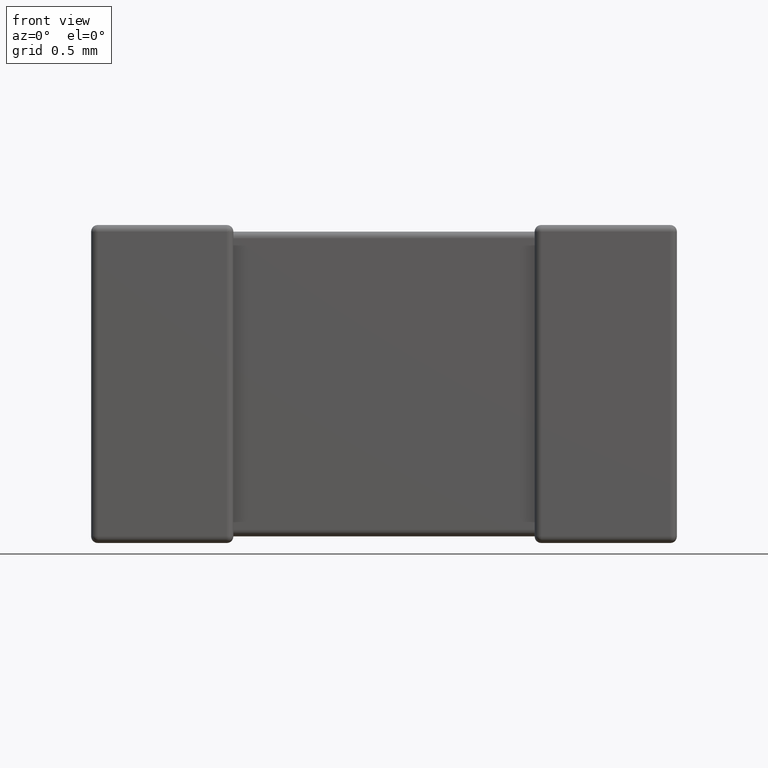
[diagram: clean part render]
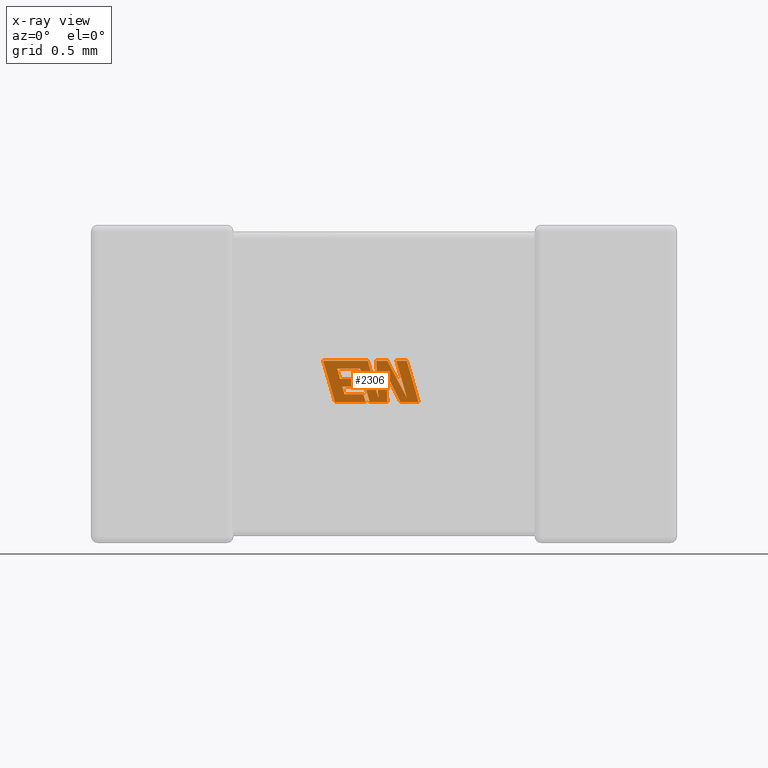
[diagram: x-ray — body ghosted, one internal face saturated and labeled with its STEP entity id]
A machine part, front view, then the same camera in x-ray: the body is ghosted and one INTERNAL B-rep face — a face not visible from any outside direction — is saturated and labeled: STEP entity #2306.
In plain terms, the highlighted planar face has unit normal (0, -1, 0).
Its self-contained STEP definition (entity closure, byte-faithful):
#46 = DIRECTION ( 'NONE',  ( -0.05596501978068185700, 0.0000000000000000000, 0.9984327301130245800 ) ) ;
#98 = ORIENTED_EDGE ( 'NONE', *, *, #2033, .F. ) ;
#115 = CARTESIAN_POINT ( 'NONE',  ( 1.606874418269159700, 1.760480000000000000, -0.9659595479684123200 ) ) ;
#161 = CARTESIAN_POINT ( 'NONE',  ( 1.886737460260521800, 1.760480000000000000, -1.033058596989660600 ) ) ;
#168 = ORIENTED_EDGE ( 'NONE', *, *, #1984, .F. ) ;
#232 = DIRECTION ( 'NONE',  ( 1.000000000000000000, 0.0000000000000000000, 0.0000000000000000000 ) ) ;
#239 = CARTESIAN_POINT ( 'NONE',  ( 1.703740122302430400, 1.760480000000000000, -0.8114900000000000400 ) ) ;
#246 = EDGE_CURVE ( 'NONE', #3260, #2113, #2145, .T. ) ;
#255 = CARTESIAN_POINT ( 'NONE',  ( 1.640208553447519700, 1.760480000000000000, -1.059174177071127200 ) ) ;
#260 = LINE ( 'NONE', #930, #650 ) ;
#269 = LINE ( 'NONE', #2570, #1490 ) ;
#276 = VERTEX_POINT ( 'NONE', #1531 ) ;
#288 = VECTOR ( 'NONE', #1039, 1000.000000000000000 ) ;
#311 = DIRECTION ( 'NONE',  ( 0.4668459304955247000, 0.0000000000000000000, -0.8843386665637592600 ) ) ;
#456 = CARTESIAN_POINT ( 'NONE',  ( 1.500565473312127000, 1.760480000000000000, -0.9659595479684123200 ) ) ;
#467 = EDGE_CURVE ( 'NONE', #4515, #1075, #2722, .T. ) ;
#481 = CARTESIAN_POINT ( 'NONE',  ( 1.513970823413273600, 1.760480000000000000, -1.012028765741800100 ) ) ;
#490 = LINE ( 'NONE', #1594, #3120 ) ;
#502 = CARTESIAN_POINT ( 'NONE',  ( 1.957261651543848800, 1.760480000000000000, -1.059174177071127200 ) ) ;
#505 = LINE ( 'NONE', #2407, #4109 ) ;
#524 = VERTEX_POINT ( 'NONE', #2083 ) ;
#530 = ORIENTED_EDGE ( 'NONE', *, *, #467, .F. ) ;
#558 = ORIENTED_EDGE ( 'NONE', *, *, #3923, .F. ) ;
#590 = LINE ( 'NONE', #3276, #2371 ) ;
#603 = VERTEX_POINT ( 'NONE', #3191 ) ;
#621 = LINE ( 'NONE', #4359, #3598 ) ;
#640 = EDGE_CURVE ( 'NONE', #1489, #3884, #621, .T. ) ;
#650 = VECTOR ( 'NONE', #872, 1000.000000000000000 ) ;
#655 = CARTESIAN_POINT ( 'NONE',  ( 1.469962113384544000, 1.760480000000000000, -0.8586120649335425800 ) ) ;
#672 = CARTESIAN_POINT ( 'NONE',  ( 1.716100156339302600, 1.760480000000000000, -1.031996712515880900 ) ) ;
#680 = VERTEX_POINT ( 'NONE', #751 ) ;
#685 = CARTESIAN_POINT ( 'NONE',  ( 1.823110246293129700, 1.760480000000000000, -0.8114900000000000400 ) ) ;
#709 = CARTESIAN_POINT ( 'NONE',  ( 1.500565473312127000, 1.760480000000000000, -0.9659595479684123200 ) ) ;
#716 = CARTESIAN_POINT ( 'NONE',  ( 1.664913559329999100, 1.760480000000000000, -1.059174177071127200 ) ) ;
#751 = CARTESIAN_POINT ( 'NONE',  ( 1.957261651543848800, 1.760480000000000000, -1.059174177071127200 ) ) ;
#784 = VERTEX_POINT ( 'NONE', #1592 ) ;
#870 = EDGE_CURVE ( 'NONE', #965, #4515, #2273, .T. ) ;
#872 = DIRECTION ( 'NONE',  ( 0.2746459304917039400, 0.0000000000000000000, -0.9615454294334439000 ) ) ;
#906 = EDGE_CURVE ( 'NONE', #3486, #524, #3636, .T. ) ;
#916 = EDGE_CURVE ( 'NONE', #276, #680, #4557, .T. ) ;
#930 = CARTESIAN_POINT ( 'NONE',  ( 1.593795917715412200, 1.760480000000000000, -0.9201712400594462800 ) ) ;
#942 = VECTOR ( 'NONE', #4295, 1000.000000000000100 ) ;
#951 = DIRECTION ( 'NONE',  ( -0.2765379750249969400, 0.0000000000000000000, 0.9610029908221275900 ) ) ;
#965 = VERTEX_POINT ( 'NONE', #3057 ) ;
#1012 = AXIS2_PLACEMENT_3D ( 'NONE', #1268, #3434, #3414 ) ;
#1035 = VECTOR ( 'NONE', #3448, 999.9999999999998900 ) ;
#1039 = DIRECTION ( 'NONE',  ( -0.2760118818968593200, 0.0000000000000000000, 0.9611542233438680200 ) ) ;
#1075 = VERTEX_POINT ( 'NONE', #716 ) ;
#1089 = LINE ( 'NONE', #655, #942 ) ;
#1249 = LINE ( 'NONE', #2821, #4301 ) ;
#1257 = CARTESIAN_POINT ( 'NONE',  ( 1.606874418269159700, 1.760480000000000000, -0.9659595479684123200 ) ) ;
#1268 = CARTESIAN_POINT ( 'NONE',  ( -0.0002322642521030218700, 1.760479999999999600, 0.02144485441983351400 ) ) ;
#1277 = ORIENTED_EDGE ( 'NONE', *, *, #2466, .F. ) ;
#1283 = VECTOR ( 'NONE', #3070, 1000.000000000000000 ) ;
#1290 = CARTESIAN_POINT ( 'NONE',  ( 1.703740122302430400, 1.760480000000000000, -0.8114900000000000400 ) ) ;
#1308 = LINE ( 'NONE', #2301, #4087 ) ;
#1321 = VECTOR ( 'NONE', #1329, 1000.000000000000000 ) ;
#1329 = DIRECTION ( 'NONE',  ( 1.000000000000000000, 0.0000000000000000000, -2.459231407381525800E-015 ) ) ;
#1355 = CARTESIAN_POINT ( 'NONE',  ( 1.652786235947213900, 1.760480000000000000, -0.8114900000000000400 ) ) ;
#1360 = CARTESIAN_POINT ( 'NONE',  ( 1.769770508863776100, 1.760480000000000000, -0.8114900000000000400 ) ) ;
#1365 = VECTOR ( 'NONE', #1583, 1000.000000000000000 ) ;
#1368 = EDGE_CURVE ( 'NONE', #2826, #3260, #260, .T. ) ;
#1446 = ORIENTED_EDGE ( 'NONE', *, *, #246, .F. ) ;
#1489 = VERTEX_POINT ( 'NONE', #672 ) ;
#1490 = VECTOR ( 'NONE', #4336, 1000.000000000000000 ) ;
#1506 = VECTOR ( 'NONE', #311, 1000.000000000000100 ) ;
#1508 = VERTEX_POINT ( 'NONE', #685 ) ;
#1524 = EDGE_CURVE ( 'NONE', #784, #2400, #1089, .T. ) ;
#1531 = CARTESIAN_POINT ( 'NONE',  ( 1.886050624345266600, 1.760480000000000000, -0.8114900000000000400 ) ) ;
#1557 = LINE ( 'NONE', #3270, #2686 ) ;
#1579 = ORIENTED_EDGE ( 'NONE', *, *, #3097, .F. ) ;
#1583 = DIRECTION ( 'NONE',  ( -1.000000000000000000, 0.0000000000000000000, 0.0000000000000000000 ) ) ;
#1592 = CARTESIAN_POINT ( 'NONE',  ( 1.469962113384544000, 1.760480000000000000, -0.8586120649335425800 ) ) ;
#1594 = CARTESIAN_POINT ( 'NONE',  ( 1.487502034949494500, 1.760480000000000000, -0.9201712400594462800 ) ) ;
#1598 = LINE ( 'NONE', #502, #2495 ) ;
#1614 = PLANE ( 'NONE',  #1012 ) ;
#1623 = EDGE_CURVE ( 'NONE', #3699, #965, #1987, .T. ) ;
#1735 = ORIENTED_EDGE ( 'NONE', *, *, #2668, .F. ) ;
#1827 = ORIENTED_EDGE ( 'NONE', *, *, #1524, .F. ) ;
#1868 = EDGE_CURVE ( 'NONE', #3884, #3785, #3430, .T. ) ;
#1906 = VECTOR ( 'NONE', #2115, 1000.000000000000000 ) ;
#1961 = ORIENTED_EDGE ( 'NONE', *, *, #4437, .F. ) ;
#1984 = EDGE_CURVE ( 'NONE', #3633, #4619, #2231, .T. ) ;
#1985 = CARTESIAN_POINT ( 'NONE',  ( 1.848629056049057500, 1.760480000000000000, -1.059174177071127200 ) ) ;
#1987 = LINE ( 'NONE', #1985, #1035 ) ;
#1994 = CARTESIAN_POINT ( 'NONE',  ( 1.760868262395991300, 1.760480000000000000, -0.8822254186202872500 ) ) ;
#2015 = CARTESIAN_POINT ( 'NONE',  ( 1.770393487593018700, 1.760480000000000000, -1.059174177071127200 ) ) ;
#2023 = ORIENTED_EDGE ( 'NONE', *, *, #2522, .F. ) ;
#2033 = EDGE_CURVE ( 'NONE', #4330, #1508, #3892, .T. ) ;
#2076 = ORIENTED_EDGE ( 'NONE', *, *, #1368, .F. ) ;
#2083 = CARTESIAN_POINT ( 'NONE',  ( 1.457227783899648100, 1.760480000000000000, -1.059174177071127200 ) ) ;
#2113 = VERTEX_POINT ( 'NONE', #709 ) ;
#2115 = DIRECTION ( 'NONE',  ( 1.000000000000000000, 0.0000000000000000000, 0.0000000000000000000 ) ) ;
#2145 = LINE ( 'NONE', #115, #1365 ) ;
#2149 = EDGE_CURVE ( 'NONE', #2113, #3633, #4560, .T. ) ;
#2166 = CARTESIAN_POINT ( 'NONE',  ( 1.640208553447519700, 1.760480000000000000, -1.059174177071127200 ) ) ;
#2225 = DIRECTION ( 'NONE',  ( 0.2759782365590801000, 0.0000000000000000000, -0.9611638845408936300 ) ) ;
#2231 = LINE ( 'NONE', #3196, #1906 ) ;
#2273 = LINE ( 'NONE', #1994, #4501 ) ;
#2286 = LINE ( 'NONE', #1360, #1506 ) ;
#2301 = CARTESIAN_POINT ( 'NONE',  ( 1.664913559329999100, 1.760480000000000000, -1.059174177071127200 ) ) ;
#2306 = ADVANCED_FACE ( 'NONE', ( #3075 ), #1614, .T. ) ;
#2342 = DIRECTION ( 'NONE',  ( -1.000000000000000000, 0.0000000000000000000, 0.0000000000000000000 ) ) ;
#2358 = CARTESIAN_POINT ( 'NONE',  ( 1.886050624345266600, 1.760480000000000000, -0.8114900000000000400 ) ) ;
#2371 = VECTOR ( 'NONE', #2225, 1000.000000000000200 ) ;
#2390 = DIRECTION ( 'NONE',  ( 0.2763139702539146300, 0.0000000000000000000, -0.9610674221107063900 ) ) ;
#2398 = ORIENTED_EDGE ( 'NONE', *, *, #640, .F. ) ;
#2400 = VERTEX_POINT ( 'NONE', #4143 ) ;
#2407 = CARTESIAN_POINT ( 'NONE',  ( 1.823110246293129700, 1.760480000000000000, -0.8114900000000000400 ) ) ;
#2445 = LINE ( 'NONE', #3126, #1321 ) ;
#2466 = EDGE_CURVE ( 'NONE', #4619, #3486, #269, .T. ) ;
#2495 = VECTOR ( 'NONE', #4459, 1000.000000000000000 ) ;
#2514 = ORIENTED_EDGE ( 'NONE', *, *, #3227, .F. ) ;
#2522 = EDGE_CURVE ( 'NONE', #680, #3699, #1598, .T. ) ;
#2570 = CARTESIAN_POINT ( 'NONE',  ( 1.626818265537473000, 1.760480000000000000, -1.012028765741800100 ) ) ;
#2607 = VERTEX_POINT ( 'NONE', #2764 ) ;
#2624 = ORIENTED_EDGE ( 'NONE', *, *, #1623, .F. ) ;
#2640 = DIRECTION ( 'NONE',  ( -0.2762517575166416100, 0.0000000000000000000, 0.9610853065513833600 ) ) ;
#2668 = EDGE_CURVE ( 'NONE', #2400, #2826, #490, .T. ) ;
#2677 = CARTESIAN_POINT ( 'NONE',  ( 1.769770508863776100, 1.760480000000000000, -0.8114900000000000400 ) ) ;
#2678 = VECTOR ( 'NONE', #2342, 1000.000000000000000 ) ;
#2686 = VECTOR ( 'NONE', #951, 1000.000000000000100 ) ;
#2722 = LINE ( 'NONE', #3480, #3913 ) ;
#2764 = CARTESIAN_POINT ( 'NONE',  ( 1.385954248408997300, 1.760480000000000000, -0.8114899999999998200 ) ) ;
#2780 = ORIENTED_EDGE ( 'NONE', *, *, #1868, .F. ) ;
#2821 = CARTESIAN_POINT ( 'NONE',  ( 1.607264529018561900, 1.760480000000000000, -0.8586120649335425800 ) ) ;
#2826 = VERTEX_POINT ( 'NONE', #3554 ) ;
#2833 = DIRECTION ( 'NONE',  ( -1.000000000000000000, 0.0000000000000000000, 0.0000000000000000000 ) ) ;
#3024 = ORIENTED_EDGE ( 'NONE', *, *, #2149, .F. ) ;
#3047 = ORIENTED_EDGE ( 'NONE', *, *, #916, .F. ) ;
#3057 = CARTESIAN_POINT ( 'NONE',  ( 1.760868262395991300, 1.760480000000000000, -0.8822254186202872500 ) ) ;
#3069 = ORIENTED_EDGE ( 'NONE', *, *, #906, .F. ) ;
#3070 = DIRECTION ( 'NONE',  ( 1.000000000000000000, 0.0000000000000000000, 0.0000000000000000000 ) ) ;
#3075 = FACE_OUTER_BOUND ( 'NONE', #3817, .T. ) ;
#3097 = EDGE_CURVE ( 'NONE', #4051, #1489, #590, .T. ) ;
#3120 = VECTOR ( 'NONE', #232, 1000.000000000000000 ) ;
#3126 = CARTESIAN_POINT ( 'NONE',  ( 1.608699202525665900, 1.760480000000000000, -0.8114899999999998200 ) ) ;
#3155 = ORIENTED_EDGE ( 'NONE', *, *, #870, .F. ) ;
#3191 = CARTESIAN_POINT ( 'NONE',  ( 1.607264529018561900, 1.760480000000000000, -0.8586120649335425800 ) ) ;
#3196 = CARTESIAN_POINT ( 'NONE',  ( 1.513970823413273600, 1.760480000000000000, -1.012028765741800100 ) ) ;
#3227 = EDGE_CURVE ( 'NONE', #1075, #603, #1308, .T. ) ;
#3260 = VERTEX_POINT ( 'NONE', #1257 ) ;
#3270 = CARTESIAN_POINT ( 'NONE',  ( 1.457227783899648100, 1.760480000000000000, -1.059174177071127200 ) ) ;
#3276 = CARTESIAN_POINT ( 'NONE',  ( 1.652786235947213900, 1.760480000000000000, -0.8114900000000000400 ) ) ;
#3296 = ORIENTED_EDGE ( 'NONE', *, *, #3399, .F. ) ;
#3297 = VECTOR ( 'NONE', #3319, 1000.000000000000100 ) ;
#3319 = DIRECTION ( 'NONE',  ( 0.2793947940878428500, 0.0000000000000000000, -0.9601763114327555000 ) ) ;
#3399 = EDGE_CURVE ( 'NONE', #603, #784, #1249, .T. ) ;
#3414 = DIRECTION ( 'NONE',  ( 0.0000000000000000000, 0.0000000000000000000, -1.000000000000000000 ) ) ;
#3430 = LINE ( 'NONE', #1290, #1283 ) ;
#3434 = DIRECTION ( 'NONE',  ( 0.0000000000000000000, -1.000000000000000000, 0.0000000000000000000 ) ) ;
#3448 = DIRECTION ( 'NONE',  ( -0.4443210308329503800, 0.0000000000000000000, 0.8958676361826809500 ) ) ;
#3480 = CARTESIAN_POINT ( 'NONE',  ( 1.770393487593018700, 1.760480000000000000, -1.059174177071127200 ) ) ;
#3486 = VERTEX_POINT ( 'NONE', #2166 ) ;
#3554 = CARTESIAN_POINT ( 'NONE',  ( 1.593795917715412200, 1.760480000000000000, -0.9201712400594462800 ) ) ;
#3561 = ORIENTED_EDGE ( 'NONE', *, *, #4305, .F. ) ;
#3584 = VECTOR ( 'NONE', #2390, 1000.000000000000100 ) ;
#3598 = VECTOR ( 'NONE', #46, 1000.000000000000100 ) ;
#3633 = VERTEX_POINT ( 'NONE', #481 ) ;
#3636 = LINE ( 'NONE', #255, #2678 ) ;
#3662 = CARTESIAN_POINT ( 'NONE',  ( 1.848629056049057500, 1.760480000000000000, -1.059174177071127200 ) ) ;
#3699 = VERTEX_POINT ( 'NONE', #3662 ) ;
#3785 = VERTEX_POINT ( 'NONE', #2677 ) ;
#3817 = EDGE_LOOP ( 'NONE', ( #2023, #3047, #3561, #98, #558, #2780, #2398, #1579, #1961, #4250, #3069, #1277, #168, #3024, #1446, #2076, #1735, #1827, #3296, #2514, #530, #3155, #2624 ) ) ;
#3884 = VERTEX_POINT ( 'NONE', #239 ) ;
#3892 = LINE ( 'NONE', #4600, #288 ) ;
#3899 = DIRECTION ( 'NONE',  ( -1.000000000000000000, 0.0000000000000000000, 0.0000000000000000000 ) ) ;
#3913 = VECTOR ( 'NONE', #3899, 1000.000000000000000 ) ;
#3923 = EDGE_CURVE ( 'NONE', #3785, #4330, #2286, .T. ) ;
#3979 = CARTESIAN_POINT ( 'NONE',  ( 1.626818265537473000, 1.760480000000000000, -1.012028765741800100 ) ) ;
#4051 = VERTEX_POINT ( 'NONE', #1355 ) ;
#4087 = VECTOR ( 'NONE', #2640, 1000.000000000000200 ) ;
#4109 = VECTOR ( 'NONE', #4608, 1000.000000000000000 ) ;
#4114 = EDGE_CURVE ( 'NONE', #524, #2607, #1557, .T. ) ;
#4143 = CARTESIAN_POINT ( 'NONE',  ( 1.487502034949494500, 1.760480000000000000, -0.9201712400594462800 ) ) ;
#4211 = DIRECTION ( 'NONE',  ( 0.05375259206908433700, 0.0000000000000000000, -0.9985542843760946100 ) ) ;
#4250 = ORIENTED_EDGE ( 'NONE', *, *, #4114, .F. ) ;
#4295 = DIRECTION ( 'NONE',  ( 0.2740217765953990000, 0.0000000000000000000, -0.9617234872620618000 ) ) ;
#4301 = VECTOR ( 'NONE', #2833, 1000.000000000000000 ) ;
#4305 = EDGE_CURVE ( 'NONE', #1508, #276, #505, .T. ) ;
#4330 = VERTEX_POINT ( 'NONE', #161 ) ;
#4336 = DIRECTION ( 'NONE',  ( 0.2732148821746424600, 0.0000000000000000000, -0.9619530280415443700 ) ) ;
#4359 = CARTESIAN_POINT ( 'NONE',  ( 1.716100156339302600, 1.760480000000000000, -1.031996712515880900 ) ) ;
#4437 = EDGE_CURVE ( 'NONE', #2607, #4051, #2445, .T. ) ;
#4459 = DIRECTION ( 'NONE',  ( -1.000000000000000000, 0.0000000000000000000, 0.0000000000000000000 ) ) ;
#4501 = VECTOR ( 'NONE', #4211, 1000.000000000000100 ) ;
#4515 = VERTEX_POINT ( 'NONE', #2015 ) ;
#4557 = LINE ( 'NONE', #2358, #3584 ) ;
#4560 = LINE ( 'NONE', #456, #3297 ) ;
#4600 = CARTESIAN_POINT ( 'NONE',  ( 1.886737460260521800, 1.760480000000000000, -1.033058596989660600 ) ) ;
#4608 = DIRECTION ( 'NONE',  ( 1.000000000000000000, 0.0000000000000000000, 0.0000000000000000000 ) ) ;
#4619 = VERTEX_POINT ( 'NONE', #3979 ) ;